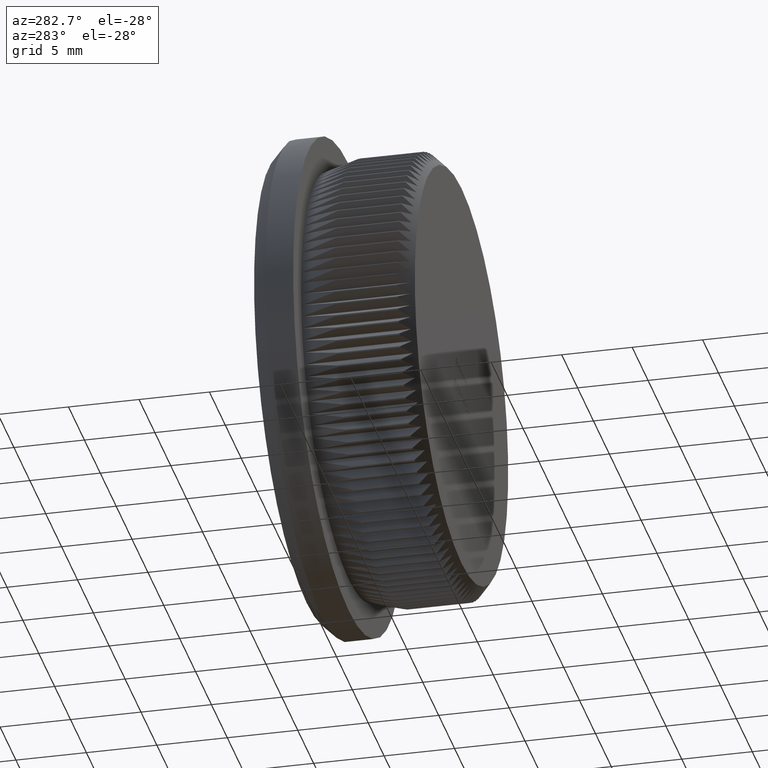
[diagram: clean part render]
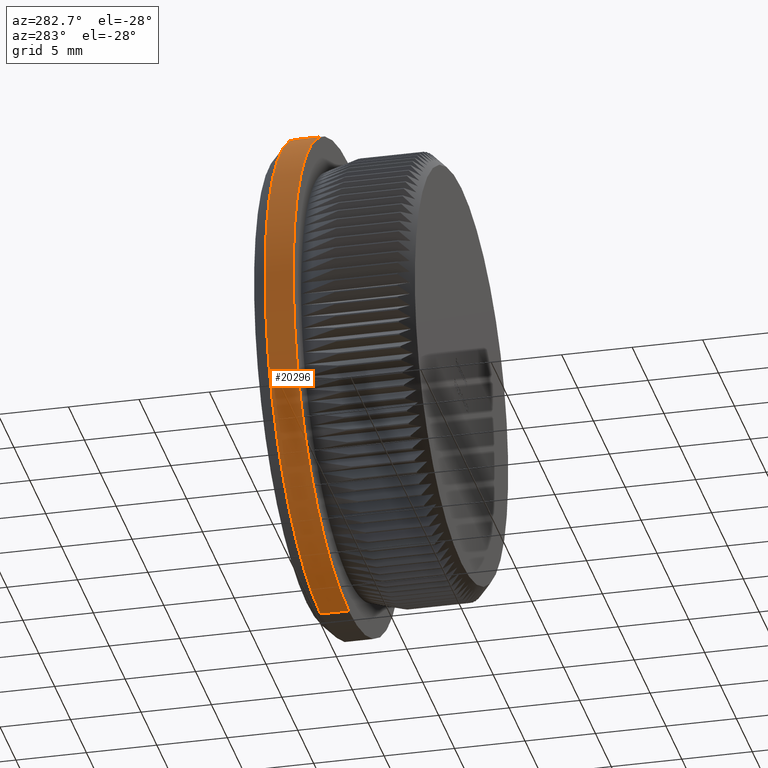
[diagram: same view with one face highlighted and labeled with its STEP entity id]
A machine part, auxiliary view. The second image highlights one B-rep face of the part: STEP entity #20296.
In plain terms, the highlighted cylindrical surface (partial cylindrical patch) has radius 17.5 mm, axis along (-0, -1, -0).
Its self-contained STEP definition (entity closure, byte-faithful):
#391 = CARTESIAN_POINT ( 'NONE',  ( 0.0000000000000000000, 0.0000000000000000000, 0.0000000000000000000 ) ) ;
#457 = LINE ( 'NONE', #20666, #23599 ) ;
#780 = EDGE_LOOP ( 'NONE', ( #8268, #8398, #27594, #6527 ) ) ;
#1946 = CARTESIAN_POINT ( 'NONE',  ( 2.143131898507868200E-015, 10.00000000000000200, 17.50000000000000000 ) ) ;
#2160 = CARTESIAN_POINT ( 'NONE',  ( 2.143131898507868200E-015, 0.0000000000000000000, 17.50000000000000000 ) ) ;
#2170 = DIRECTION ( 'NONE',  ( -0.0000000000000000000, -1.000000000000000000, -0.0000000000000000000 ) ) ;
#3264 = AXIS2_PLACEMENT_3D ( 'NONE', #391, #25970, #26063 ) ;
#4691 = CARTESIAN_POINT ( 'NONE',  ( 0.0000000000000000000, 8.000000000000000000, 0.0000000000000000000 ) ) ;
#5349 = DIRECTION ( 'NONE',  ( -0.0000000000000000000, -1.000000000000000000, -0.0000000000000000000 ) ) ;
#5422 = VECTOR ( 'NONE', #14361, 1000.000000000000000 ) ;
#6123 = CARTESIAN_POINT ( 'NONE',  ( 0.0000000000000000000, 8.000000000000000000, -17.50000000000000000 ) ) ;
#6527 = ORIENTED_EDGE ( 'NONE', *, *, #11593, .F. ) ;
#6678 = VERTEX_POINT ( 'NONE', #1946 ) ;
#6908 = AXIS2_PLACEMENT_3D ( 'NONE', #15938, #5349, #20321 ) ;
#7167 = VERTEX_POINT ( 'NONE', #6123 ) ;
#8114 = CARTESIAN_POINT ( 'NONE',  ( 2.143131898507868200E-015, 8.000000000000000000, 17.50000000000000000 ) ) ;
#8268 = ORIENTED_EDGE ( 'NONE', *, *, #17645, .F. ) ;
#8398 = ORIENTED_EDGE ( 'NONE', *, *, #19678, .T. ) ;
#8679 = FACE_OUTER_BOUND ( 'NONE', #780, .T. ) ;
#9793 = LINE ( 'NONE', #2160, #5422 ) ;
#10139 = EDGE_CURVE ( 'NONE', #18836, #7167, #457, .T. ) ;
#10732 = CIRCLE ( 'NONE', #6908, 17.50000000000000000 ) ;
#11593 = EDGE_CURVE ( 'NONE', #18990, #7167, #23712, .T. ) ;
#12722 = CYLINDRICAL_SURFACE ( 'NONE', #3264, 17.50000000000000000 ) ;
#14361 = DIRECTION ( 'NONE',  ( -0.0000000000000000000, -1.000000000000000000, -0.0000000000000000000 ) ) ;
#15938 = CARTESIAN_POINT ( 'NONE',  ( 0.0000000000000000000, 10.00000000000000200, 0.0000000000000000000 ) ) ;
#17383 = AXIS2_PLACEMENT_3D ( 'NONE', #4691, #2170, #19415 ) ;
#17645 = EDGE_CURVE ( 'NONE', #6678, #18990, #9793, .T. ) ;
#18336 = CARTESIAN_POINT ( 'NONE',  ( 0.0000000000000000000, 10.00000000000000200, -17.50000000000000000 ) ) ;
#18768 = DIRECTION ( 'NONE',  ( -0.0000000000000000000, -1.000000000000000000, -0.0000000000000000000 ) ) ;
#18836 = VERTEX_POINT ( 'NONE', #18336 ) ;
#18990 = VERTEX_POINT ( 'NONE', #8114 ) ;
#19415 = DIRECTION ( 'NONE',  ( 0.0000000000000000000, 0.0000000000000000000, -1.000000000000000000 ) ) ;
#19678 = EDGE_CURVE ( 'NONE', #6678, #18836, #10732, .T. ) ;
#20296 = ADVANCED_FACE ( 'NONE', ( #8679 ), #12722, .T. ) ;
#20321 = DIRECTION ( 'NONE',  ( 0.0000000000000000000, 0.0000000000000000000, 1.000000000000000000 ) ) ;
#20666 = CARTESIAN_POINT ( 'NONE',  ( 0.0000000000000000000, 0.0000000000000000000, -17.50000000000000000 ) ) ;
#23599 = VECTOR ( 'NONE', #18768, 1000.000000000000000 ) ;
#23712 = CIRCLE ( 'NONE', #17383, 17.50000000000000000 ) ;
#25970 = DIRECTION ( 'NONE',  ( -0.0000000000000000000, -1.000000000000000000, -0.0000000000000000000 ) ) ;
#26063 = DIRECTION ( 'NONE',  ( 0.0000000000000000000, 0.0000000000000000000, -1.000000000000000000 ) ) ;
#27594 = ORIENTED_EDGE ( 'NONE', *, *, #10139, .T. ) ;